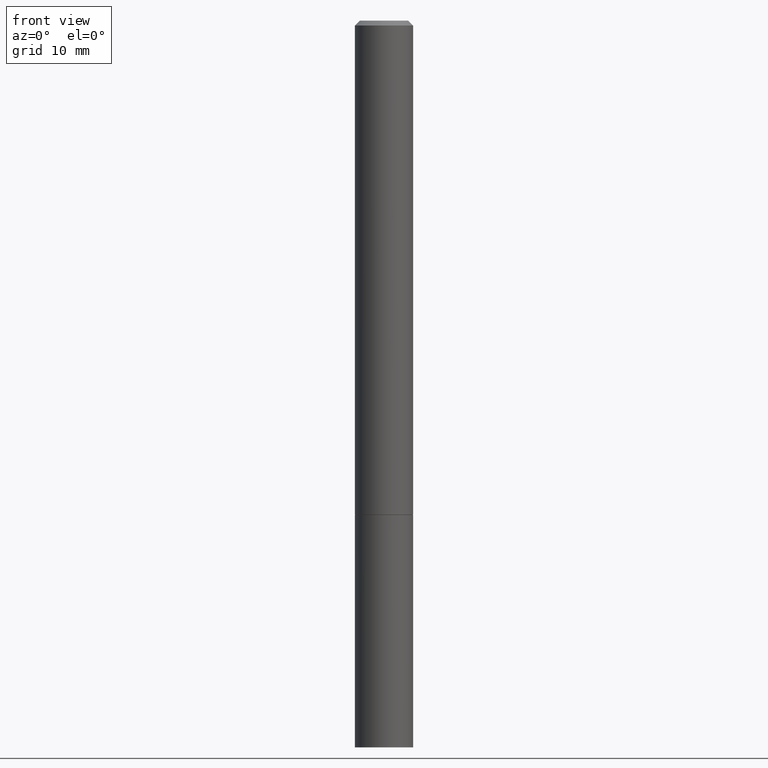
[diagram: clean part render]
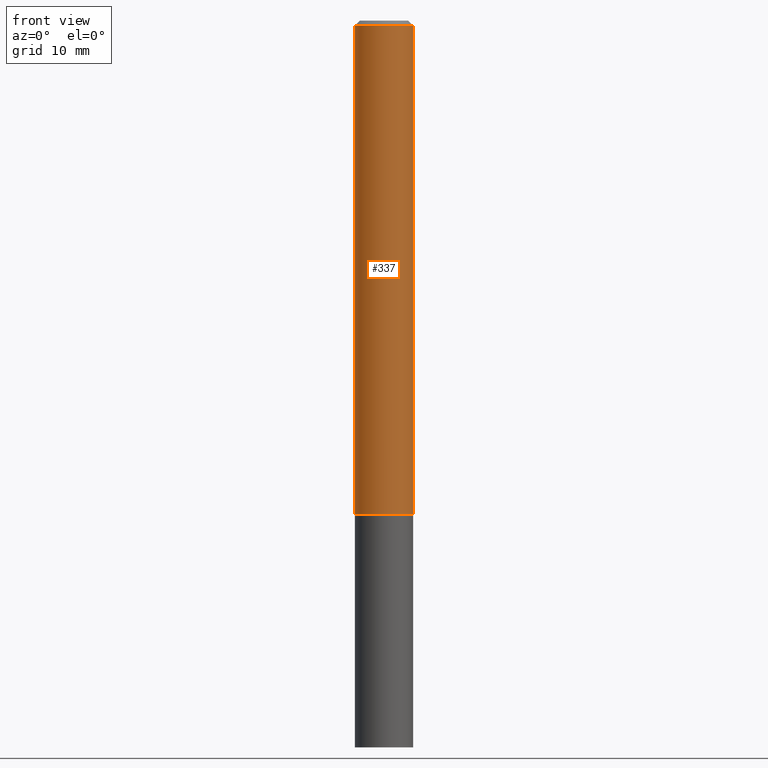
[diagram: same view with one face highlighted and labeled with its STEP entity id]
A machine part, front view. The second image highlights one B-rep face of the part: STEP entity #337.
In plain terms, the highlighted cylindrical surface (edge-blend (fillet) strip) has radius 2.9997 mm, axis along (-0, 0, 1).
Its self-contained STEP definition (entity closure, byte-faithful):
#15 = VECTOR ( 'NONE', #100, 39.37007874015748143 ) ;
#21 = AXIS2_PLACEMENT_3D ( 'NONE', #292, #340, #90 ) ;
#27 = CYLINDRICAL_SURFACE ( 'NONE', #150, 0.1180999999999998579 ) ;
#32 = EDGE_CURVE ( 'NONE', #48, #194, #123, .T. ) ;
#48 = VERTEX_POINT ( 'NONE', #209 ) ;
#52 = AXIS2_PLACEMENT_3D ( 'NONE', #59, #265, #229 ) ;
#54 = CARTESIAN_POINT ( 'NONE',  ( 0.1180999999999999689, -7.831741791159054599E-15, -2.006899999999999462 ) ) ;
#56 = ORIENTED_EDGE ( 'NONE', *, *, #60, .T. ) ;
#59 = CARTESIAN_POINT ( 'NONE',  ( 4.890937612370287172E-31, -6.982962677686310098E-17, -0.02000000000000005593 ) ) ;
#60 = EDGE_CURVE ( 'NONE', #251, #316, #325, .T. ) ;
#90 = DIRECTION ( 'NONE',  ( 1.000000000000000000, -6.982962677686266711E-15, 0.000000000000000000 ) ) ;
#93 = CARTESIAN_POINT ( 'NONE',  ( -0.1180999999999998579, 8.391509709326773096E-16, -5.809262341591036777E-30 ) ) ;
#100 = DIRECTION ( 'NONE',  ( -2.445468806185136877E-29, 3.491481338843145188E-15, 1.000000000000000000 ) ) ;
#103 = VECTOR ( 'NONE', #159, 39.37007874015748143 ) ;
#107 = ORIENTED_EDGE ( 'NONE', *, *, #283, .F. ) ;
#114 = ORIENTED_EDGE ( 'NONE', *, *, #32, .F. ) ;
#123 = LINE ( 'NONE', #93, #15 ) ;
#133 = ORIENTED_EDGE ( 'NONE', *, *, #291, .T. ) ;
#148 = CARTESIAN_POINT ( 'NONE',  ( 0.000000000000000000, 0.000000000000000000, 0.000000000000000000 ) ) ;
#150 = AXIS2_PLACEMENT_3D ( 'NONE', #148, #256, #362 ) ;
#159 = DIRECTION ( 'NONE',  ( -2.445468806185136877E-29, 3.491481338843145188E-15, 1.000000000000000000 ) ) ;
#162 = EDGE_LOOP ( 'NONE', ( #114, #133, #56, #107 ) ) ;
#171 = FACE_OUTER_BOUND ( 'NONE', #162, .T. ) ;
#194 = VERTEX_POINT ( 'NONE', #310 ) ;
#196 = CIRCLE ( 'NONE', #52, 0.1180999999999997607 ) ;
#209 = CARTESIAN_POINT ( 'NONE',  ( -0.1180999999999999689, -2.699290791917903859E-15, -2.006899999999999462 ) ) ;
#229 = DIRECTION ( 'NONE',  ( 1.000000000000000000, -6.982962677686266711E-15, 0.000000000000000000 ) ) ;
#251 = VERTEX_POINT ( 'NONE', #54 ) ;
#256 = DIRECTION ( 'NONE',  ( -2.445468806185136597E-29, 3.491481338843145583E-15, 1.000000000000000000 ) ) ;
#265 = DIRECTION ( 'NONE',  ( -2.445468806185136597E-29, 3.491481338843145583E-15, 1.000000000000000000 ) ) ;
#283 = EDGE_CURVE ( 'NONE', #194, #316, #196, .T. ) ;
#291 = EDGE_CURVE ( 'NONE', #48, #251, #342, .T. ) ;
#292 = CARTESIAN_POINT ( 'NONE',  ( 4.907811347132949706E-29, -7.007053898924307126E-15, -2.006899999999999462 ) ) ;
#304 = CARTESIAN_POINT ( 'NONE',  ( 0.1180999999999998579, -8.246878922347470793E-16, 5.758764772214993434E-30 ) ) ;
#310 = CARTESIAN_POINT ( 'NONE',  ( -0.1180999999999997607, 7.548582654578832881E-16, -0.02000000000000005593 ) ) ;
#316 = VERTEX_POINT ( 'NONE', #338 ) ;
#325 = LINE ( 'NONE', #304, #103 ) ;
#337 = ADVANCED_FACE ( 'NONE', ( #171 ), #27, .T. ) ;
#338 = CARTESIAN_POINT ( 'NONE',  ( 0.1180999999999997607, -8.800544403136792597E-16, -0.02000000000000005593 ) ) ;
#340 = DIRECTION ( 'NONE',  ( -2.445468806185136597E-29, 3.491481338843145583E-15, 1.000000000000000000 ) ) ;
#342 = CIRCLE ( 'NONE', #21, 0.1180999999999999689 ) ;
#362 = DIRECTION ( 'NONE',  ( 1.000000000000000000, -6.982962677686266711E-15, 4.876176775795935793E-29 ) ) ;